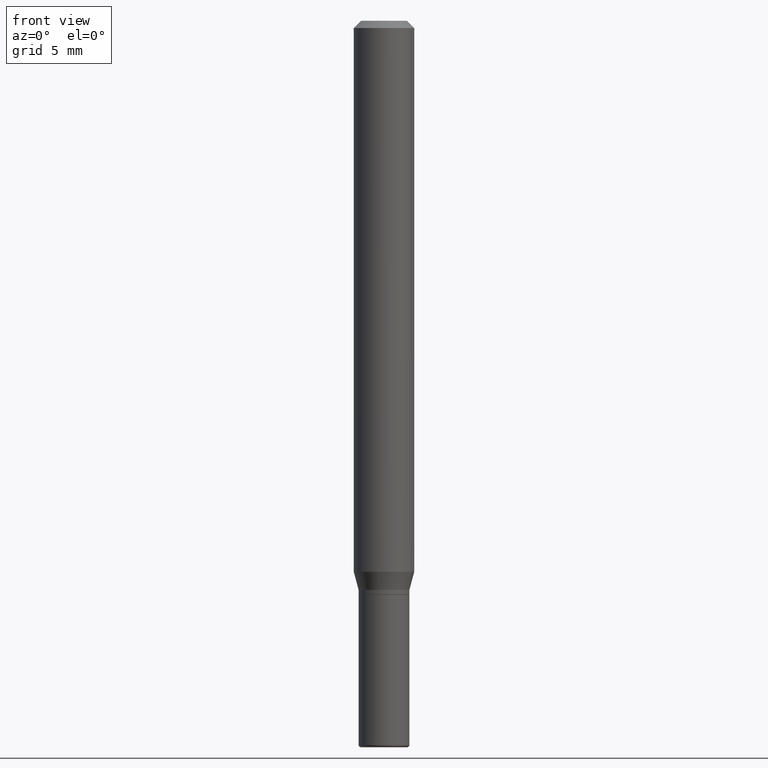
[diagram: clean part render]
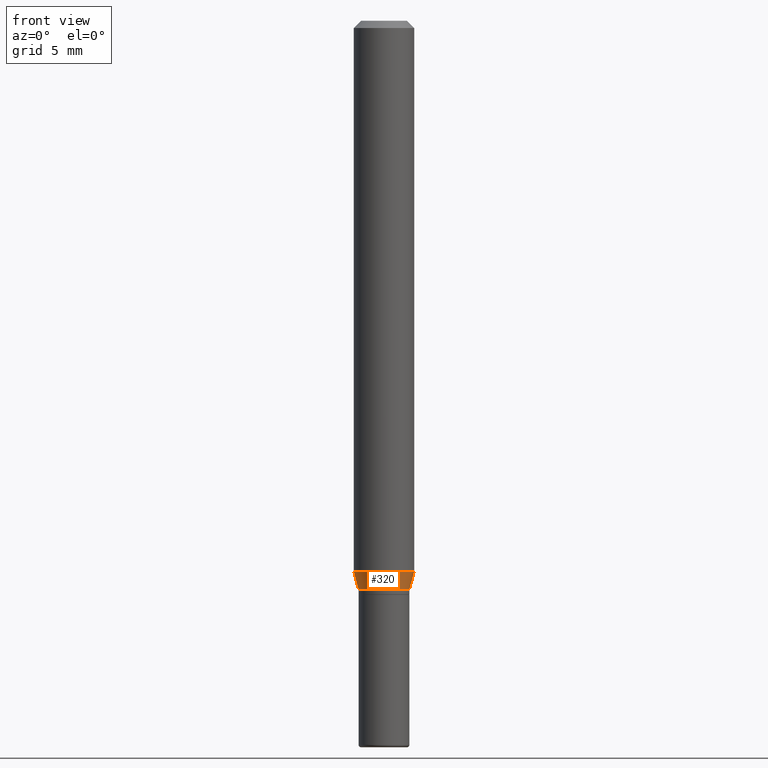
[diagram: same view with one face highlighted and labeled with its STEP entity id]
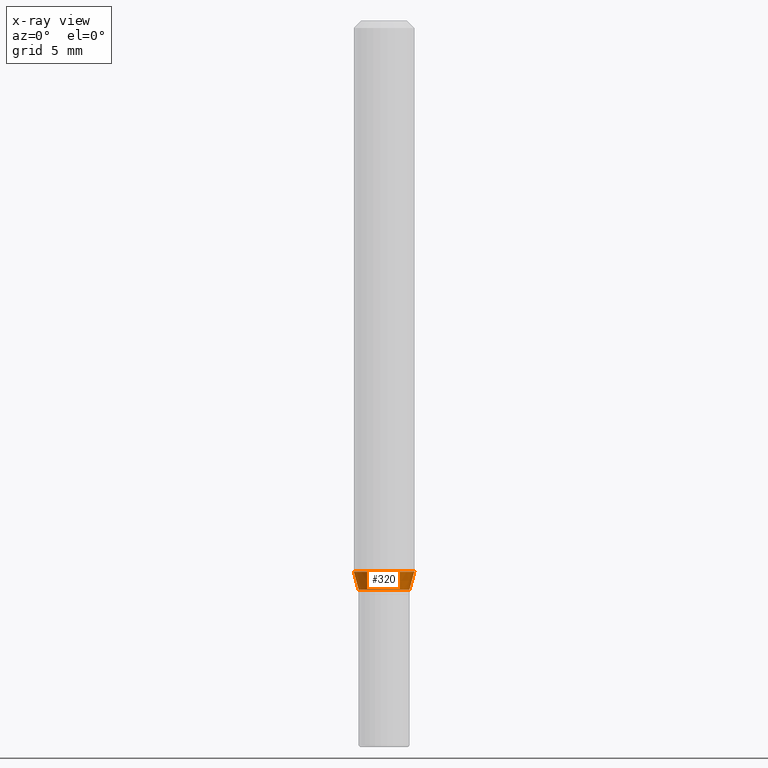
[diagram: x-ray of the same camera — body ghosted, the highlighted face saturated]
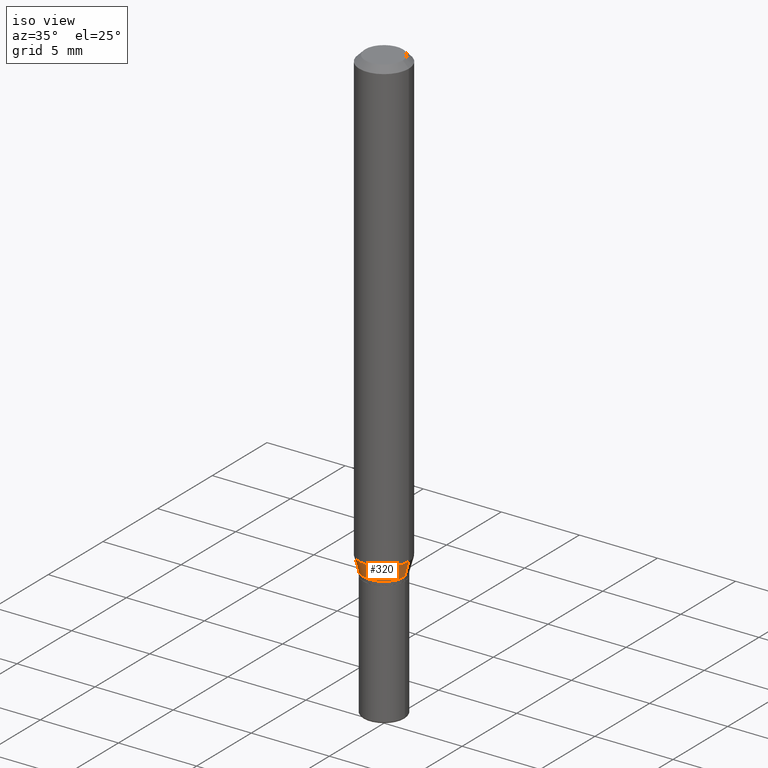
[diagram: same view with one face highlighted and labeled with its STEP entity id]
A machine part, front view. The second image highlights one B-rep face of the part: STEP entity #320.
The next image is the same camera in x-ray: the body ghosted, the highlighted face saturated — about 0% of this face is hidden behind the body in this view.
A second angle (iso view) of the same face is appended — the face is thin or edge-on in the first view.
In plain terms, the highlighted conical surface has half-angle 15 deg.
Its self-contained STEP definition (entity closure, byte-faithful):
#9 = ORIENTED_EDGE ( 'NONE', *, *, #477, .F. ) ;
#10 = CARTESIAN_POINT ( 'NONE',  ( 0.05250000000000007438, -4.469096113719226630E-15, -1.175000000000000488 ) ) ;
#21 = CARTESIAN_POINT ( 'NONE',  ( -0.05250000000000007438, -3.729455636866644935E-15, -1.175000000000000488 ) ) ;
#22 = LINE ( 'NONE', #179, #195 ) ;
#44 = CIRCLE ( 'NONE', #239, 0.05250000000000007438 ) ;
#68 = EDGE_CURVE ( 'NONE', #318, #331, #44, .T. ) ;
#72 = VERTEX_POINT ( 'NONE', #174 ) ;
#80 = FACE_OUTER_BOUND ( 'NONE', #384, .T. ) ;
#112 = DIRECTION ( 'NONE',  ( 0.2588190451025205729, 1.565188264969628081E-15, 0.9659258262890684232 ) ) ;
#140 = DIRECTION ( 'NONE',  ( 1.000000000000000000, -6.982962677686270655E-15, 0.000000000000000000 ) ) ;
#149 = EDGE_CURVE ( 'NONE', #318, #294, #420, .T. ) ;
#160 = AXIS2_PLACEMENT_3D ( 'NONE', #419, #209, #140 ) ;
#164 = DIRECTION ( 'NONE',  ( -2.445468806185136597E-29, 3.491481338843145583E-15, 1.000000000000000000 ) ) ;
#174 = CARTESIAN_POINT ( 'NONE',  ( 0.06250000000000000000, -4.408621882993678121E-15, -1.137679491924311836 ) ) ;
#179 = CARTESIAN_POINT ( 'NONE',  ( 0.05250000000000007438, -4.469096113719226630E-15, -1.175000000000000488 ) ) ;
#195 = VECTOR ( 'NONE', #112, 39.37007874015748143 ) ;
#203 = CARTESIAN_POINT ( 'NONE',  ( 2.873425847267536398E-29, -4.102490573140697470E-15, -1.175000000000000488 ) ) ;
#209 = DIRECTION ( 'NONE',  ( -2.445468806185136597E-29, 3.491481338843145583E-15, 1.000000000000000000 ) ) ;
#210 = DIRECTION ( 'NONE',  ( -0.2588190451025205729, 5.211531920934545520E-15, 0.9659258262890684232 ) ) ;
#217 = ORIENTED_EDGE ( 'NONE', *, *, #68, .T. ) ;
#239 = AXIS2_PLACEMENT_3D ( 'NONE', #321, #164, #423 ) ;
#254 = VECTOR ( 'NONE', #210, 39.37007874015748143 ) ;
#271 = AXIS2_PLACEMENT_3D ( 'NONE', #203, #460, #280 ) ;
#272 = CIRCLE ( 'NONE', #160, 0.06250000000000000000 ) ;
#280 = DIRECTION ( 'NONE',  ( 1.000000000000000000, -6.982962677686258033E-15, 0.000000000000000000 ) ) ;
#287 = CARTESIAN_POINT ( 'NONE',  ( -0.05250000000000007438, -3.628776571327434780E-15, -1.175000000000000488 ) ) ;
#294 = VERTEX_POINT ( 'NONE', #346 ) ;
#318 = VERTEX_POINT ( 'NONE', #287 ) ;
#320 = ADVANCED_FACE ( 'NONE', ( #80 ), #438, .T. ) ;
#321 = CARTESIAN_POINT ( 'NONE',  ( 2.873425847267536398E-29, -4.102490573140697470E-15, -1.175000000000000488 ) ) ;
#331 = VERTEX_POINT ( 'NONE', #10 ) ;
#346 = CARTESIAN_POINT ( 'NONE',  ( -0.06250000000000000000, -3.528097505788223835E-15, -1.137679491924311836 ) ) ;
#384 = EDGE_LOOP ( 'NONE', ( #397, #217, #470, #9 ) ) ;
#397 = ORIENTED_EDGE ( 'NONE', *, *, #149, .F. ) ;
#419 = CARTESIAN_POINT ( 'NONE',  ( 2.782159708937459794E-29, -3.972186715638285663E-15, -1.137679491924311836 ) ) ;
#420 = LINE ( 'NONE', #21, #254 ) ;
#423 = DIRECTION ( 'NONE',  ( 1.000000000000000000, -6.982962677686258033E-15, 0.000000000000000000 ) ) ;
#438 = CONICAL_SURFACE ( 'NONE', #271, 0.05250000000000007438, 0.2617993877991492413 ) ;
#459 = EDGE_CURVE ( 'NONE', #331, #72, #22, .T. ) ;
#460 = DIRECTION ( 'NONE',  ( -2.445468806185136597E-29, 3.491481338843145583E-15, 1.000000000000000000 ) ) ;
#470 = ORIENTED_EDGE ( 'NONE', *, *, #459, .T. ) ;
#477 = EDGE_CURVE ( 'NONE', #294, #72, #272, .T. ) ;